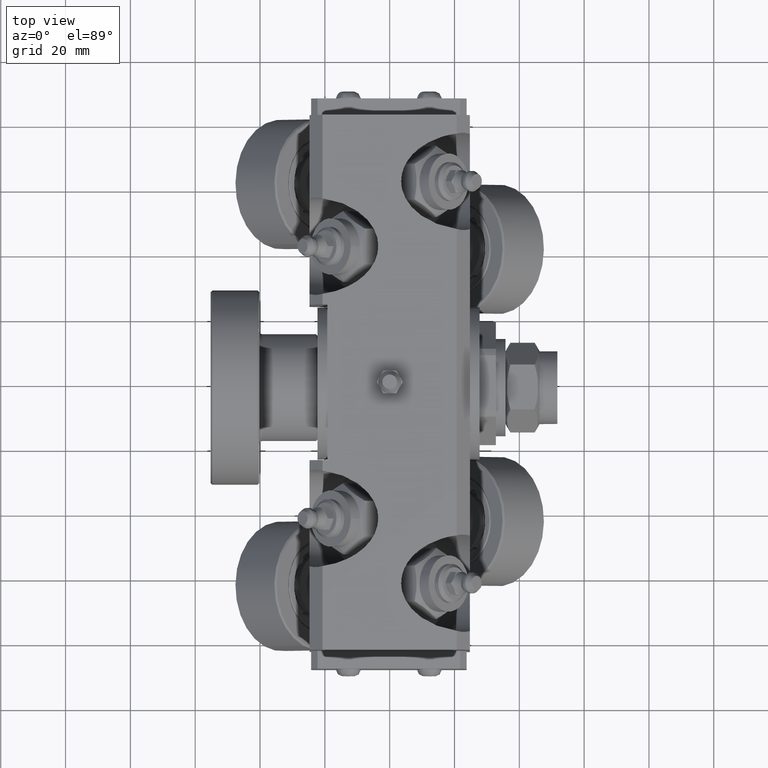
[diagram: clean part render]
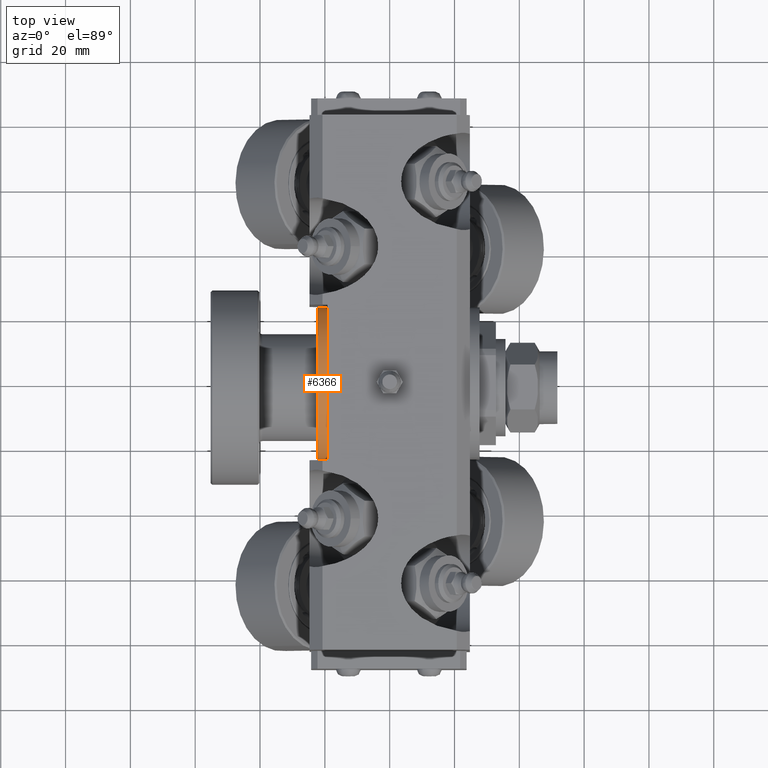
[diagram: same view with one face highlighted and labeled with its STEP entity id]
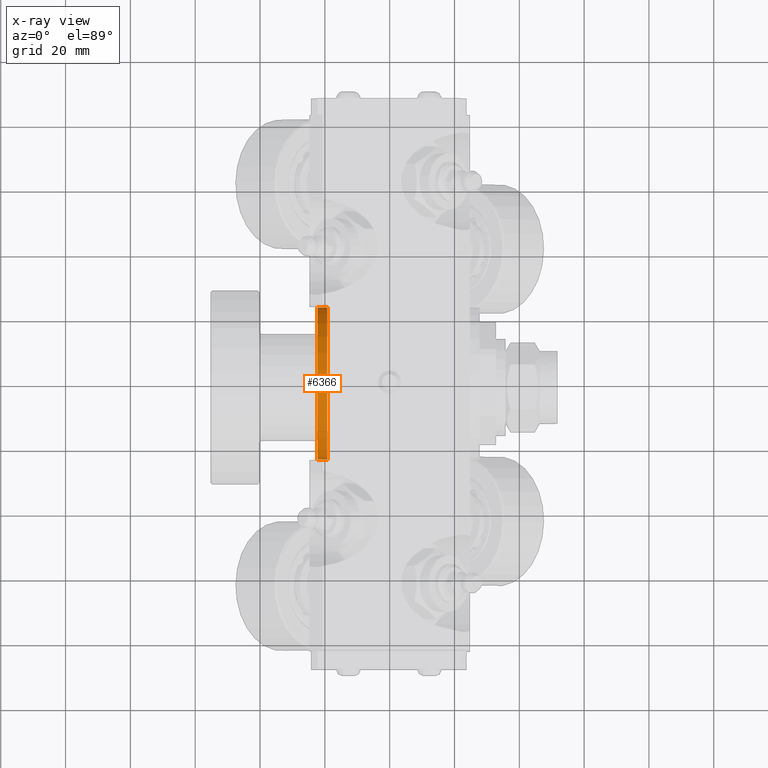
[diagram: x-ray of the same camera — body ghosted, the highlighted face saturated]
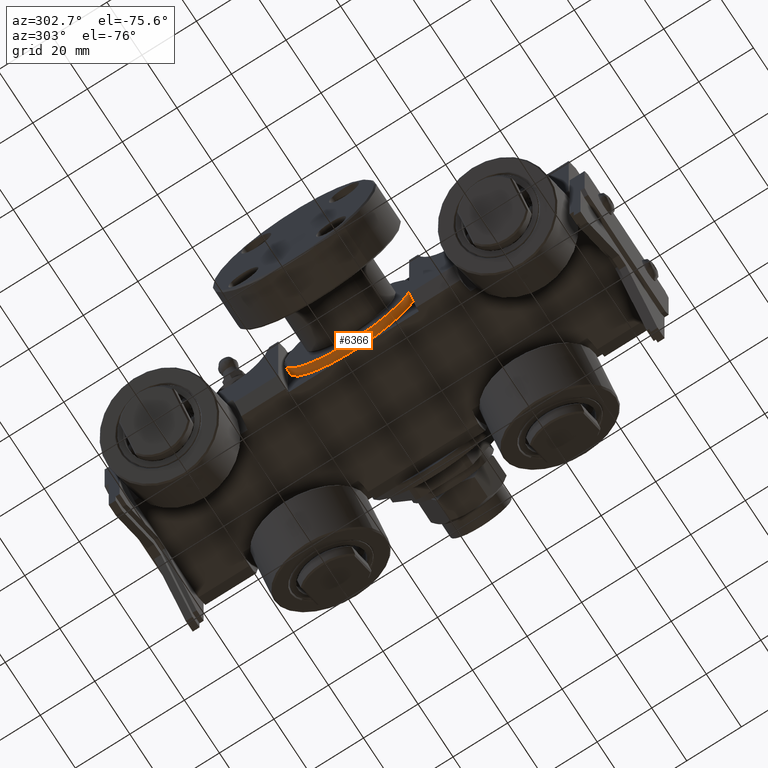
[diagram: same view with one face highlighted and labeled with its STEP entity id]
A machine part, top view. The second image highlights one B-rep face of the part: STEP entity #6366.
The next image is the same camera in x-ray: the body ghosted, the highlighted face saturated — about 0% of this face is hidden behind the body in this view.
A second angle (auxiliary view) of the same face is appended — the face is thin or edge-on in the first view.
In plain terms, the highlighted cylindrical surface (bore or boss wall) has radius 23.5 mm, axis along (1, -0, -0).
Its self-contained STEP definition (entity closure, byte-faithful):
#889=FACE_OUTER_BOUND('',#1313,.T.);
#1313=EDGE_LOOP('',(#5476,#5477,#5478,#5479));
#1710=CIRCLE('',#7449,23.5);
#1711=CIRCLE('',#7451,23.5);
#2120=LINE('',#12836,#2491);
#2491=VECTOR('',#8989,23.5);
#3085=VERTEX_POINT('',#12831);
#3086=VERTEX_POINT('',#12834);
#3911=EDGE_CURVE('',#3085,#3085,#1710,.T.);
#3912=EDGE_CURVE('',#3086,#3086,#1711,.T.);
#3913=EDGE_CURVE('',#3086,#3085,#2120,.T.);
#5476=ORIENTED_EDGE('',*,*,#3912,.F.);
#5477=ORIENTED_EDGE('',*,*,#3913,.T.);
#5478=ORIENTED_EDGE('',*,*,#3911,.F.);
#5479=ORIENTED_EDGE('',*,*,#3913,.F.);
#6110=CYLINDRICAL_SURFACE('',#7450,23.5);
#6366=ADVANCED_FACE('',(#889),#6110,.T.);
#7449=AXIS2_PLACEMENT_3D('',#12832,#8983,#8984);
#7450=AXIS2_PLACEMENT_3D('',#12833,#8985,#8986);
#7451=AXIS2_PLACEMENT_3D('',#12835,#8987,#8988);
#8983=DIRECTION('center_axis',(-1.,0.,0.));
#8984=DIRECTION('ref_axis',(0.,-1.,0.));
#8985=DIRECTION('center_axis',(1.,0.,0.));
#8986=DIRECTION('ref_axis',(0.,-1.,0.));
#8987=DIRECTION('center_axis',(1.,0.,0.));
#8988=DIRECTION('ref_axis',(0.,-1.,0.));
#8989=DIRECTION('',(-1.,0.,0.));
#12831=CARTESIAN_POINT('',(-1.5,23.5,2.87791997799628E-15));
#12832=CARTESIAN_POINT('Origin',(-1.5,0.,0.));
#12833=CARTESIAN_POINT('Origin',(0.,0.,0.));
#12834=CARTESIAN_POINT('',(1.5,23.5,2.87791997799628E-15));
#12835=CARTESIAN_POINT('Origin',(1.5,0.,0.));
#12836=CARTESIAN_POINT('',(0.,23.5,2.87791997799628E-15));